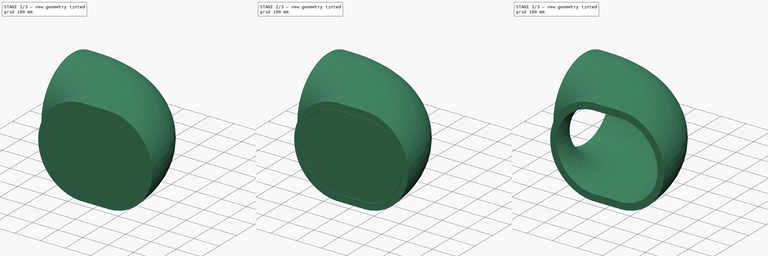
[diagram: build sequence overview — one tinted view per stage of 3, left to right]
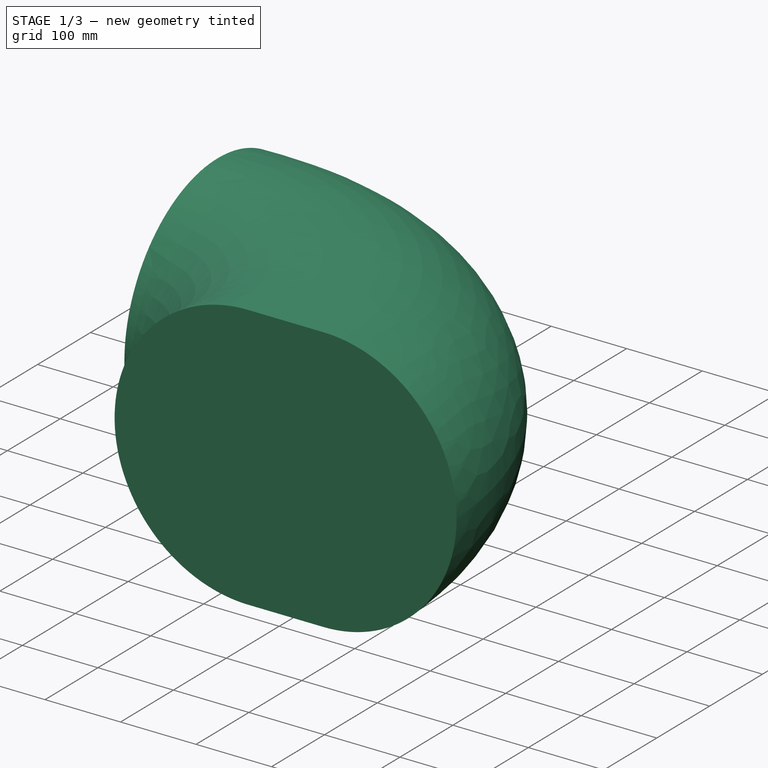
[diagram: stage 1 of 3 — iso view after this stage's code; geometry added in this stage tinted green]
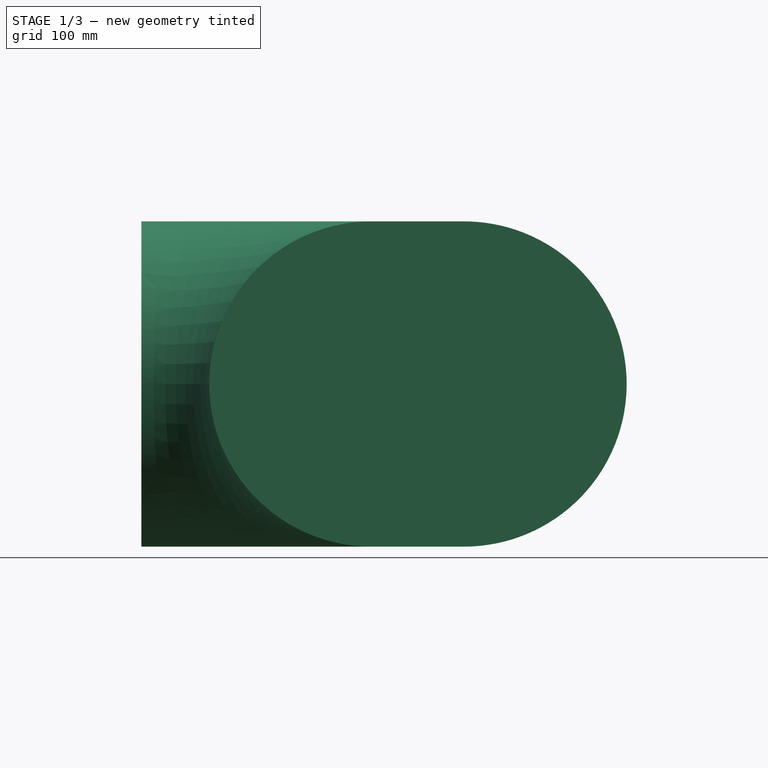
[diagram: stage 1 of 3 — front view after this stage's code; geometry added in this stage tinted green]
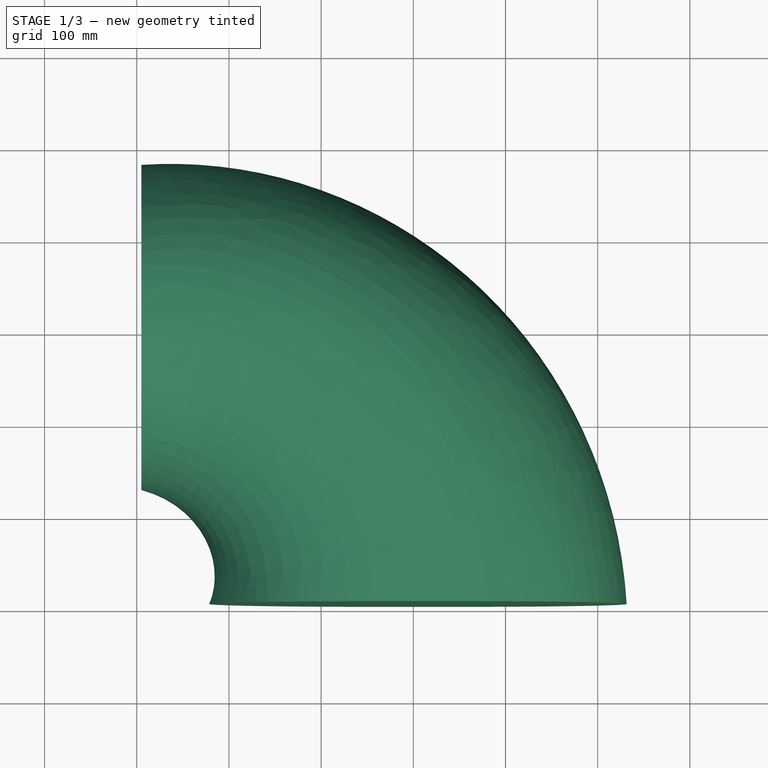
[diagram: stage 1 of 3 — top view after this stage's code; geometry added in this stage tinted green]
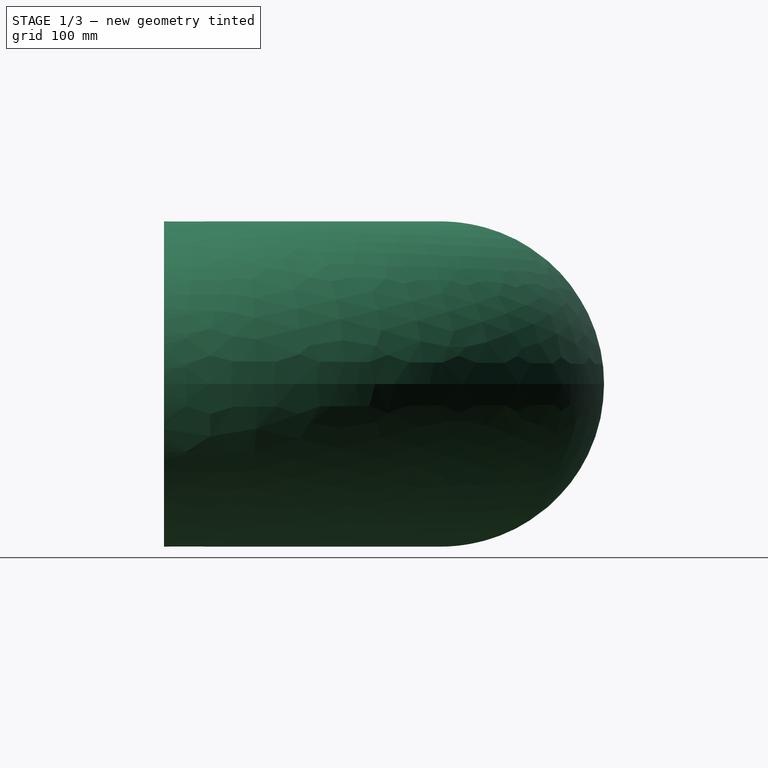
[diagram: stage 1 of 3 — right view after this stage's code; geometry added in this stage tinted green]
FCSTD DOCUMENT  (FreeCAD 1.0R38641 +468 (Git))
Label: Duct_curved_circular_oval_complete_R04
License: All rights reserved
LicenseURL: http://en.wikipedia.org/wiki/All_rights_reserved
objects: Sketcher::SketchObject×8, App::DocumentObjectGroup×5, TechDraw::DrawViewPart×4, Part::Sweep×3, App::MaterialObjectPython×2, Part::Cut×2, Part::Extrusion×2, TechDraw::DrawSVGTemplate×1, Part::Part2DObjectPython×1, Spreadsheet::Sheet×1, TechDraw::DrawViewSpreadsheet×1, App::TextDocument×1, App::DocumentObjectGroupPython×1, TechDraw::DrawViewSection×1, TechDraw::DrawPage×1, App::VarSet×1
note: 24 computed .brp shape members not serialized (recipe doc carries the construction recipe); baked Part::Feature solids carry a one-line shape summary decoded from their .brp

FEATURE [Sketcher::SketchObject] Sketch044  label="Opening_01_external_oval_insulation"
  ArcFitTolerance = 0
  AttachmentSupport = -> [Arc001]
  FullyConstrained = true
  MakeInternals = false
  MapMode = 7
  Placement = pos=(305,5,0) rot=(1,0,0;1.5708rad)
  expr: .AttachmentOffset.Base.z = 0
  expr: .Constraints.Diameter = VarSet.Duct_Opening1_diameter + 2 * VarSet.Duct_Sheet_thickness + 2 * VarSet.Insulation_Thickness
  expr: .Constraints.Distance_between_arcs = VarSet.Duct_Opening1_distance_between_arcs
  expr: AttachmentSupport = VarSet.Duct_Axis
  expr: MapPathParameter = VarSet.Duct_Flip_axis
  sketch-geometry (4):
    g0: ArcOfCircle CenterX=-50 CenterY=0 CenterZ=0 NormalX=0 NormalY=0 NormalZ=1 AngleXU=0 Radius=176.4 StartAngle=1.5708 EndAngle=4.71239
    g1: ArcOfCircle CenterX=50 CenterY=0 CenterZ=0 NormalX=0 NormalY=0 NormalZ=1 AngleXU=0 Radius=176.4 StartAngle=4.71239 EndAngle=7.85398
    g2: LineSegment StartX=-50 StartY=-176.4 StartZ=0 EndX=50 EndY=-176.4 EndZ=0
    g3: LineSegment StartX=50 StartY=176.4 StartZ=0 EndX=-50 EndY=176.4 EndZ=0
  constraints (9):
    c: Tangent(g0,g2) = -1.5708
    c: Tangent(g2,g1) = -1.5708
    c: Tangent(g1,g3) = -1.5708
    c: Tangent(g3,g0) = -1.5708
    c: Equal(g0,g1)
    c: Diameter(g1) = 352.8  'Diameter'
    c: DistanceX(g0,g1) = 100  'Distance_between_arcs'
    c: Symmetric(g0,g1,g-2)
    c: PointOnObject(g0,g-1)
FEATURE [Sketcher::SketchObject] Sketch045  label="Opening_02_circular_flange"
  ArcFitTolerance = 0
  AttachmentSupport = -> [Arc001]
  FullyConstrained = true
  MakeInternals = false
  MapMode = 7
  Placement = pos=(5,305,0) rot=(0.57735,0.57735,0.57735;2.0944rad)
  expr: .Constraints.Diameter_external = VarSet.Duct_Opening2_diameter + 2 * VarSet.Flange_Height
  expr: .Constraints.Diameter_internal = VarSet.Duct_Opening2_diameter
  expr: .Constraints.Horizontal_position = VarSet.Duct_Opening2_horizontal_position
  expr: .Constraints.Vertical_position = VarSet.Duct_Opening2_vertical_position
  expr: AttachmentSupport = VarSet.Duct_Axis
  expr: MapPathParameter = 1 - VarSet.Duct_Flip_axis
  sketch-geometry (2):
    g0: Circle CenterX=0 CenterY=0 CenterZ=0 NormalX=0 NormalY=0 NormalZ=1 AngleXU=0 Radius=150
    g1: Circle CenterX=0 CenterY=0 CenterZ=0 NormalX=0 NormalY=0 NormalZ=1 AngleXU=0 Radius=175.4
  constraints (5):
    c: Diameter(g0) = 300  'Diameter_internal'
    c: Diameter(g1) = 350.8  'Diameter_external'
    c: Coincident(g1,g0)
    c: DistanceY(g-1,g0) = 0  'Vertical_position'
    c: DistanceX(g-1,g0) = 0  'Horizontal_position'
FEATURE [Sketcher::SketchObject] Sketch046  label="Opening_01_oval_flange"
  ArcFitTolerance = 0
  AttachmentSupport = -> [Arc001]
  FullyConstrained = true
  MakeInternals = false
  MapMode = 7
  Placement = pos=(305,5,0) rot=(1,0,0;1.5708rad)
  expr: .AttachmentOffset.Base.z = 0
  expr: .Constraints.Diameter_external = VarSet.Duct_Opening1_diameter + 2 * VarSet.Flange_Height
  expr: .Constraints.Diameter_internal = VarSet.Duct_Opening1_diameter
  expr: .Constraints.Distance_between_arcs = VarSet.Duct_Opening1_distance_between_arcs
  expr: AttachmentSupport = VarSet.Duct_Axis
  expr: MapPathParameter = VarSet.Duct_Flip_axis
  sketch-geometry (8):
    g0: ArcOfCircle CenterX=-50 CenterY=0 CenterZ=0 NormalX=0 NormalY=0 NormalZ=1 AngleXU=0 Radius=150 StartAngle=1.5708 EndAngle=4.71239
    g1: ArcOfCircle CenterX=50 CenterY=0 CenterZ=0 NormalX=0 NormalY=0 NormalZ=1 AngleXU=0 Radius=150 StartAngle=4.71239 EndAngle=7.85398
    g2: LineSegment StartX=-50 StartY=-150 StartZ=0 EndX=50 EndY=-150 EndZ=0
    g3: LineSegment StartX=50 StartY=150 StartZ=0 EndX=-50 EndY=150 EndZ=0
    g4: ArcOfCircle CenterX=-50 CenterY=0 CenterZ=0 NormalX=0 NormalY=0 NormalZ=1 AngleXU=0 Radius=175.4 StartAngle=1.5708 EndAngle=4.71239
    g5: ArcOfCircle CenterX=50 CenterY=0 CenterZ=0 NormalX=0 NormalY=0 NormalZ=1 AngleXU=0 Radius=175.4 StartAngle=4.71239 EndAngle=7.85398
    g6: LineSegment StartX=-50 StartY=-175.4 StartZ=0 EndX=50 EndY=-175.4 EndZ=0
    g7: LineSegment StartX=50 StartY=175.4 StartZ=0 EndX=-50 EndY=175.4 EndZ=0
  constraints (17):
    c: Tangent(g0,g2) = -1.5708
    c: Tangent(g2,g1) = -1.5708
    c: Tangent(g1,g3) = -1.5708
    c: Tangent(g3,g0) = -1.5708
    c: Equal(g0,g1)
    c: Diameter(g1) = 300  'Diameter_internal'
    c: DistanceX(g0,g1) = 100  'Distance_between_arcs'
    c: Symmetric(g0,g1,g-2)
    c: PointOnObject(g0,g-1)
    c: Tangent(g4,g6) = -1.5708
    c: Tangent(g6,g5) = -1.5708
    c: Tangent(g5,g7) = -1.5708
    c: Tangent(g7,g4) = -1.5708
    c: Equal(g4,g5)
    c: Coincident(g4,g0)
    c: Coincident(g5,g1)
    c: Diameter(g5) = 350.8  'Diameter_external'
FEATURE [Spreadsheet::Sheet] Spreadsheet003  label="Output_curved_oval_circular_duct"
  cells = A1='Description:; A2==<<Oval curved duct for air conditioning of %s>> % round(VarSet.Duct_Axis.LastAngle - VarSet.Duct_Axis.FirstAngle) + <<, composed of %s>> % VarSet.Duct_Sheet_thickness + << thick of %s>> % VarSet.Materials_Sheet_metal.Label + << sheets (opening 1 of %s>> % (VarSet.Duct_Opening1_diameter + VarSet.Duct_Opening1_distance_between_arcs) + << x %s>> % VarSet.Duct_Opening1_diameter + << in width and height, and opening 2 of %s>> % VarSet.Duct_Opening2_diameter + << in diameter)>> + VarSet.Insulation_Insulation * (<< with an external insulation layer of %s>> % VarSet.Insulation_Thickness + << thick %s>> % VarSet.Materials_Insulation.Label + << blanket>>) + <<.>>; A5='Components; B5='D; C5='A; D5='W; E5='H; F5='T; G5='Area; H5='Material; A6='1. Duct (rectangular oval); G6==Cut.Base_Area; H6==VarSet.Materials_Sheet_metal.Label; A7='1.1. Duct length:; C7==VarSet.Duct_Axis.LastAngle - VarSet.Duct_Axis.FirstAngle; A8='1.2. Opening 1:; D8==VarSet.Duct_Opening1_diameter + VarSet.Duct_Opening1_distance_between_arcs; E8==VarSet.Duct_Opening1_diameter; A9='1.3. Opening 2:; B9==VarSet.Duct_Opening2_diameter; A10='1.4. Sheet thickness:; F10==VarSet.Duct_Sheet_thickness; A11='2. Flanges; G11==(VarSet.Flange_Flange_01 + VarSet.Flange_Flange_02 - VarSet.Flange_Flange_01 * VarSet.Flange_Flange_02) * str(round(Extrude.Base_Area * VarSet.Flange_Flange_01 + Extrude002.Base_Area * VarSet.Flange_Flange_02)); H11==(VarSet.Flange_Flange_01 + VarSet.Flange_Flange_02 - VarSet.Flange_Flange_01 * VarSet.Flange_Flange_02) * VarSet.Materials_Sheet_metal.Label; A12='2.1. Flanges height:; E12==(VarSet.Flange_Flange_01 + VarSet.Flange_Flange_02 - VarSet.Flange_Flange_01 * VarSet.Flange_Flange_02) * str(VarSet.Flange_Height); A13='2.2. Flanges thickness:; F13==(VarSet.Flange_Flange_01 + VarSet.Flange_Flange_02 - VarSet.Flange_Flange_01 * VarSet.Flange_Flange_02) * str(VarSet.Flange_Thickness); A14='3. Insulation; G14==VarSet.Insulation_Insulation * str(round(Cut008.Base_Area)) + <<--->> * (1 - VarSet.Insulation_Insulation); H14==VarSet.Materials_Insulation.Label * VarSet.Insulation_Insulation + <<--->> * (1 - VarSet.Insulation_Insulation); A15='3.1. Insulation thickness:; F15==str(VarSet.Insulation_Thickness) * VarSet.Insulation_Insulation + <<--->> * (1 - VarSet.Insulation_Insulation)
FEATURE [TechDraw::DrawViewSpreadsheet] Sheet
  CellEnd = H15
  CellStart = A5
  Font = Arial
  LineWidth = 0.35
  LockPosition = false
  Rotation = 0
  Scale = 0.73
  ScaleType = 2
  Source = -> Spreadsheet003
  Symbol = <blob: 20116 chars omitted>
  TextSize = 12
  X = 216.367
  Y = 89.4322
  expr: Scale = 0.73
FEATURE [App::DocumentObjectGroup] Group  label="Spreadsheet_output_"
  Group = -> [Spreadsheet003]
FEATURE [Sketcher::SketchObject] Sketch047  label="Opening_01_external_oval_001"
  ArcFitTolerance = 0
  AttachmentSupport = -> [Arc001]
  FullyConstrained = true
  MakeInternals = false
  MapMode = 7
  Placement = pos=(305,5,0) rot=(1,0,0;1.5708rad)
  expr: .AttachmentOffset.Base.z = 0
  expr: .Constraints.Diameter = VarSet.Duct_Opening1_diameter + 2 * VarSet.Duct_Sheet_thickness
  expr: .Constraints.Distance_between_arcs = VarSet.Duct_Opening1_distance_between_arcs
  expr: AttachmentSupport = VarSet.Duct_Axis
  expr: MapPathParameter = VarSet.Duct_Flip_axis
  sketch-geometry (4):
    g0: ArcOfCircle CenterX=-50 CenterY=0 CenterZ=0 NormalX=0 NormalY=0 NormalZ=1 AngleXU=0 Radius=151 StartAngle=1.5708 EndAngle=4.71239
    g1: ArcOfCircle CenterX=50 CenterY=0 CenterZ=0 NormalX=0 NormalY=0 NormalZ=1 AngleXU=0 Radius=151 StartAngle=4.71239 EndAngle=7.85398
    g2: LineSegment StartX=-50 StartY=-151 StartZ=0 EndX=50 EndY=-151 EndZ=0
    g3: LineSegment StartX=50 StartY=151 StartZ=0 EndX=-50 EndY=151 EndZ=0
  constraints (9):
    c: Tangent(g0,g2) = -1.5708
    c: Tangent(g2,g1) = -1.5708
    c: Tangent(g1,g3) = -1.5708
    c: Tangent(g3,g0) = -1.5708
    c: Equal(g0,g1)
    c: Diameter(g1) = 302  'Diameter'
    c: DistanceX(g0,g1) = 100  'Distance_between_arcs'
    c: Symmetric(g0,g1,g-2)
    c: PointOnObject(g0,g-1)
FEATURE [Sketcher::SketchObject] Sketch048  label="Opening_02_external_circular_"
  ArcFitTolerance = 0
  AttachmentSupport = -> [Arc001]
  FullyConstrained = true
  MakeInternals = false
  MapMode = 7
  Placement = pos=(5,305,0) rot=(0.57735,0.57735,0.57735;2.0944rad)
  expr: .Constraints.Diameter = VarSet.Duct_Opening2_diameter + 2 * VarSet.Duct_Sheet_thickness
  expr: .Constraints.Horizontal_position = VarSet.Duct_Opening2_horizontal_position
  expr: .Constraints.Vertical_position = VarSet.Duct_Opening2_vertical_position
  expr: AttachmentSupport = VarSet.Duct_Axis
  expr: MapPathParameter = 1 - VarSet.Duct_Flip_axis
  sketch-geometry (1):
    g0: Circle CenterX=0 CenterY=0 CenterZ=0 NormalX=0 NormalY=0 NormalZ=1 AngleXU=0 Radius=151
  constraints (3):
    c: Diameter(g0) = 302  'Diameter'
    c: DistanceY(g-1,g0) = 0  'Vertical_position'
    c: DistanceX(g-1,g0) = 0  'Horizontal_position'
FEATURE [Part::Sweep] Sweep005  label="Duct_curved_external_"
  Frenet = true
  Sections = -> [Sketch047,Sketch048]
  Solid = true
  Spine = -> Arc001
  Transition = 1
  expr: Spine = VarSet.Duct_Axis
FEATURE [Sketcher::SketchObject] Sketch049  label="Opening_02_external_circular_insulation"
  ArcFitTolerance = 0
  AttachmentSupport = -> [Arc001]
  FullyConstrained = true
  MakeInternals = false
  MapMode = 7
  Placement = pos=(5,305,0) rot=(0.57735,0.57735,0.57735;2.0944rad)
  expr: .Constraints.Diameter = VarSet.Duct_Opening2_diameter + 2 * VarSet.Duct_Sheet_thickness + 2 * VarSet.Insulation_Thickness
  expr: .Constraints.Horizontal_position = VarSet.Duct_Opening2_horizontal_position
  expr: .Constraints.Vertical_position = VarSet.Duct_Opening2_vertical_position
  expr: AttachmentSupport = VarSet.Duct_Axis
  expr: MapPathParameter = 1 - VarSet.Duct_Flip_axis
  sketch-geometry (1):
    g0: Circle CenterX=0 CenterY=0 CenterZ=0 NormalX=0 NormalY=0 NormalZ=1 AngleXU=0 Radius=176.4
  constraints (3):
    c: Diameter(g0) = 352.8  'Diameter'
    c: DistanceX(g-1,g0) = 0  'Horizontal_position'
    c: DistanceY(g-1,g0) = 0  'Vertical_position'
FEATURE [Part::Sweep] Sweep006  label="Duct_curved_external_insulation"
  Frenet = true
  Sections = -> [Sketch044,Sketch049]
  Solid = true
  Spine = -> Arc001
  Transition = 1
  expr: Spine = VarSet.Duct_Axis
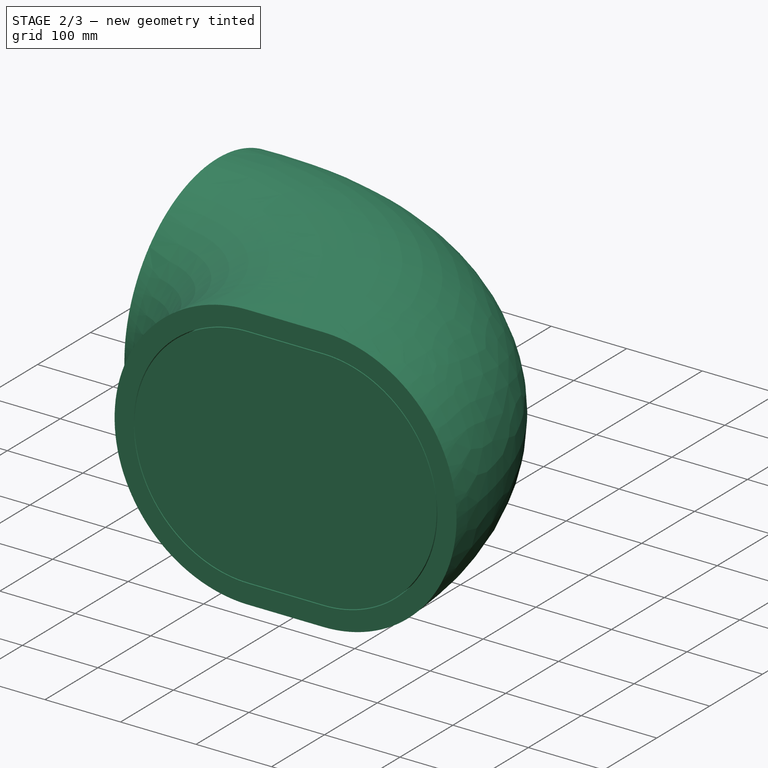
[diagram: stage 2 of 3 — iso view after this stage's code; geometry added in this stage tinted green]
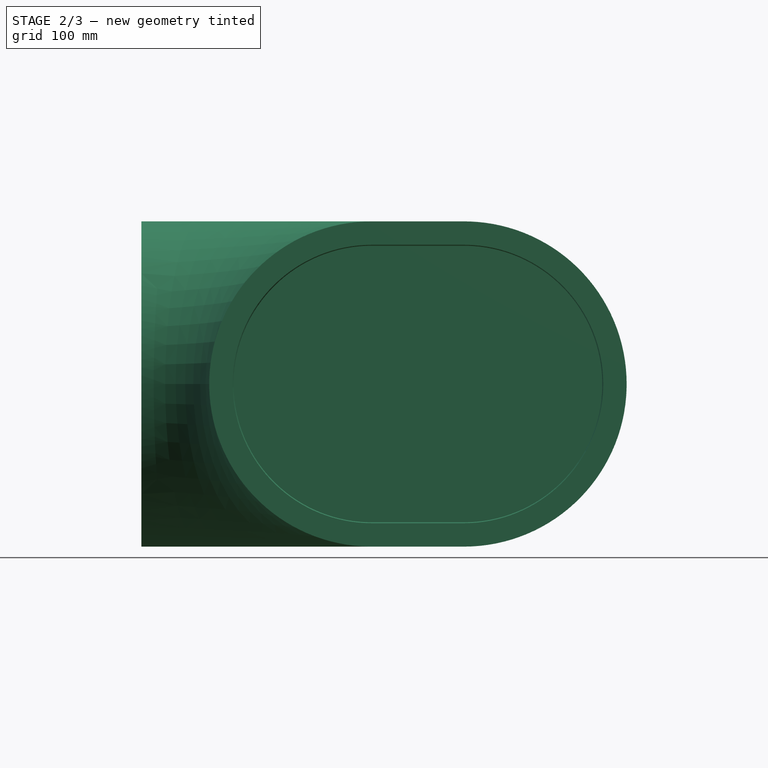
[diagram: stage 2 of 3 — front view after this stage's code; geometry added in this stage tinted green]
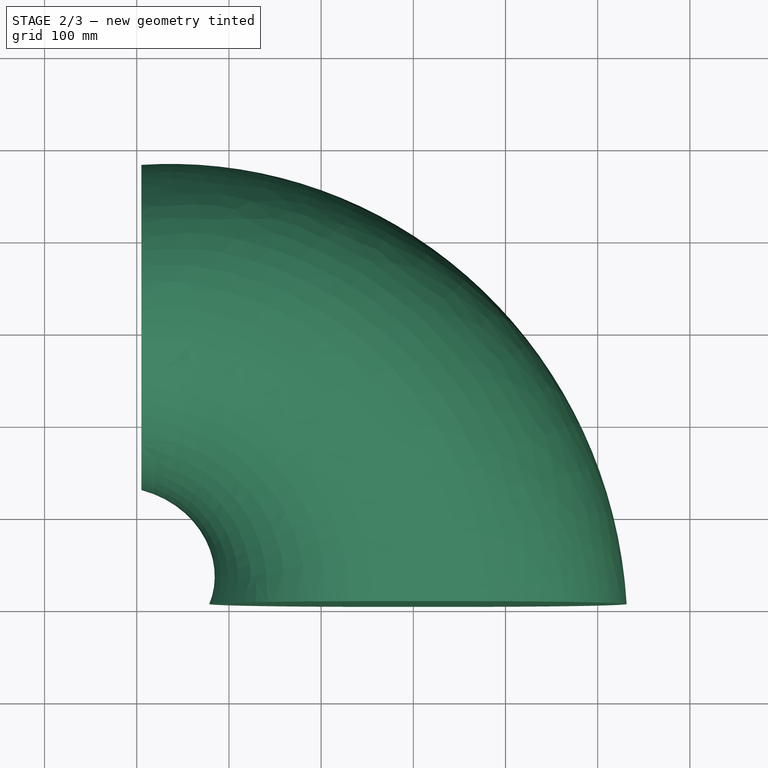
[diagram: stage 2 of 3 — top view after this stage's code; geometry added in this stage tinted green]
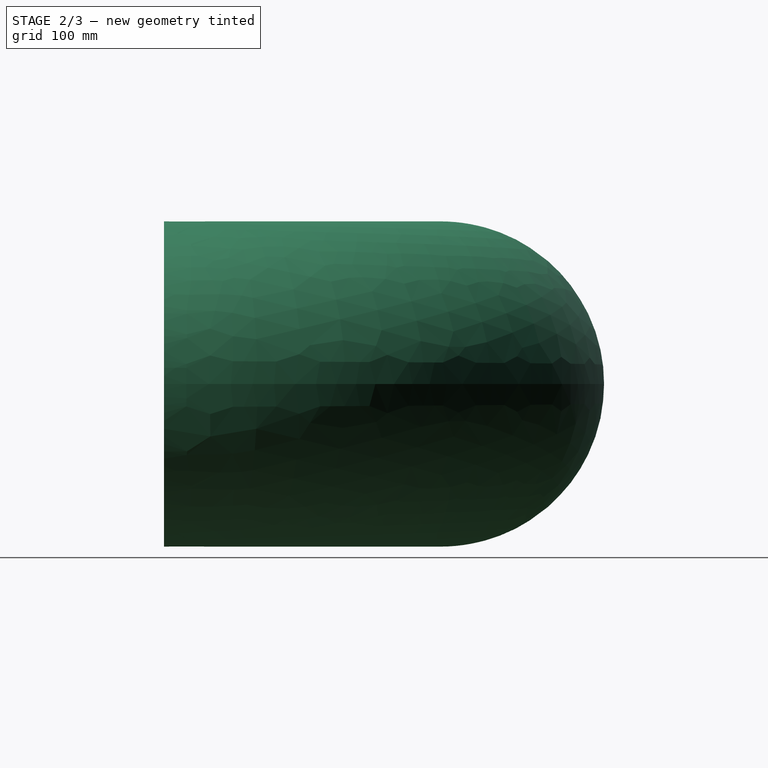
[diagram: stage 2 of 3 — right view after this stage's code; geometry added in this stage tinted green]
FEATURE [TechDraw::DrawSVGTemplate] Template
  EditableTexts = Designed_by_Name=Designed by Name; Drawing_number=Drawing number; FC-Date=Date; FC-SC=1/20; FC-SH=Sheet_01; FC-Title=Title; Subtitle=Oval circular curved duct; Weight=Weight
  Height = 210
  Orientation = 1
  Template = <path>
  Width = 297
FEATURE [Part::Part2DObjectPython] Arc001  label="Axis_"  # Draft 2D object (typed FeaturePython)
  Area = 0
  FirstAngle = 0
  LastAngle = 90
  MakeFace = false
  Placement = pos=(5,5,0) rot=(0,0,1;0rad)
  Radius = 300
FEATURE [Sketcher::SketchObject] Sketch039  label="Opening_02_internal_circular_"
  ArcFitTolerance = 0
  AttachmentSupport = -> [Arc001]
  FullyConstrained = true
  MakeInternals = false
  MapMode = 7
  Placement = pos=(5,305,0) rot=(0.57735,0.57735,0.57735;2.0944rad)
  expr: .Constraints.Diameter = VarSet.Duct_Opening2_diameter
  expr: .Constraints.Horizontal_position = VarSet.Duct_Opening2_horizontal_position
  expr: .Constraints.Vertical_position = VarSet.Duct_Opening2_vertical_position
  expr: AttachmentSupport = VarSet.Duct_Axis
  expr: MapPathParameter = 1 - VarSet.Duct_Flip_axis
  sketch-geometry (1):
    g0: Circle CenterX=0 CenterY=0 CenterZ=0 NormalX=0 NormalY=0 NormalZ=1 AngleXU=0 Radius=150
  constraints (3):
    c: Diameter(g0) = 300  'Diameter'
    c: DistanceX(g-1,g0) = 0  'Horizontal_position'
    c: DistanceY(g-1,g0) = 0  'Vertical_position'
FEATURE [Sketcher::SketchObject] Sketch040  label="Opening_01_internal_oval_"
  ArcFitTolerance = 0
  AttachmentSupport = -> [Arc001]
  FullyConstrained = true
  MakeInternals = false
  MapMode = 7
  Placement = pos=(305,5,0) rot=(1,0,0;1.5708rad)
  expr: .AttachmentOffset.Base.z = 0
  expr: .Constraints.Diameter = VarSet.Duct_Opening1_diameter
  expr: .Constraints.Distance_between_arcs = VarSet.Duct_Opening1_distance_between_arcs
  expr: AttachmentSupport = VarSet.Duct_Axis
  expr: MapPathParameter = VarSet.Duct_Flip_axis
  sketch-geometry (4):
    g0: ArcOfCircle CenterX=-50 CenterY=0 CenterZ=0 NormalX=0 NormalY=0 NormalZ=1 AngleXU=0 Radius=150 StartAngle=1.5708 EndAngle=4.71239
    g1: ArcOfCircle CenterX=50 CenterY=0 CenterZ=0 NormalX=0 NormalY=0 NormalZ=1 AngleXU=0 Radius=150 StartAngle=4.71239 EndAngle=7.85398
    g2: LineSegment StartX=-50 StartY=-150 StartZ=0 EndX=50 EndY=-150 EndZ=0
    g3: LineSegment StartX=50 StartY=150 StartZ=0 EndX=-50 EndY=150 EndZ=0
  constraints (9):
    c: Tangent(g0,g2) = -1.5708
    c: Tangent(g2,g1) = -1.5708
    c: Tangent(g1,g3) = -1.5708
    c: Tangent(g3,g0) = -1.5708
    c: Equal(g0,g1)
    c: Diameter(g1) = 300  'Diameter'
    c: DistanceX(g0,g1) = 100  'Distance_between_arcs'
    c: Symmetric(g0,g1,g-2)
    c: PointOnObject(g0,g-1)
FEATURE [Part::Sweep] Sweep001  label="Duct_curved_internal_"
  Frenet = true
  Sections = -> [Sketch040,Sketch039]
  Solid = true
  Spine = -> Arc001
  Transition = 1
  expr: Spine = VarSet.Duct_Axis
  expr: Visibility = VarSet.Duct_Show_volume_only
FEATURE [Part::Extrusion] Extrude002  label="Flange_02"
  Base = -> Sketch045
  Base_Area = 25965.8
  Dir = (1,-3.36025e-11,0)
  DirMode = 2
  FaceMakerClass = Part::FaceMakerBullseye
  FaceMakerMode = 3
  LengthFwd = 1
  LengthRev = 0
  Material = -> Material049
  Solid = true
  Symmetric = false
  expr: Base_Area = .Shape.Face3.Area
  expr: LengthFwd = VarSet.Flange_Thickness
  expr: Material = VarSet.Materials_Sheet_metal
  expr: Reversed = VarSet.Duct_Flip_axis
  expr: Visibility = VarSet.Flange_Flange_02 * (1 - VarSet.Duct_Show_volume_only)
FEATURE [App::MaterialObjectPython] Material050  label="glass wool with aluminium foill generic"  # material (typed FeaturePython)
  Material = AuthorAndLicense=Uwe Stöhr; CardName=Iron-Generic; Color=(0.8, 0.8, 0.8, 1.0); Density=7874 kg/m^3; DiffuseColor=(0.7372549176216125, 0.7372549176216125, 0.7372549176216125); ElectricalConductivity=10.3 MS/m; Father=Metal; KindOfMaterial=Iron; Name=glass wool with aluminium foill generic; PoissonRatio=0.29; RelativePermeability=5000.0; SectionColor=(0.8, 0.8, 0.8, 1.0); ShearModulus=82.0 GPa; SpecificHeat=460.5 J/kg/K; ThermalConductivity=80.4 W/m/K; ThermalExpansionCoefficient=11.8 µm/m/K; Transparency=0; UltimateTensileStrength=497 MPa; ViewColor=(0.8, 0.8, 0.8, 1.0); YieldStrength=428 MPa; YoungsModulus=211 GPa
  Transparency = 0
FEATURE [App::DocumentObjectGroupPython] MaterialContainer  label="Materials"  # scripted group (container) (typed FeaturePython)
  Group = -> [Material049,Material050]
FEATURE [Part::Cut] Cut008  label="Insulation_"
  Base = -> Sweep006
  Base_Area = 570529
  Material = -> Material050
  Tool = -> Sweep005
  expr: Base_Area = .Shape.Face1.Area + .Shape.Face2.Area + .Shape.Face4.Area + .Shape.Face6.Area + .Shape.Face7.Area
  expr: Material = VarSet.Materials_Insulation
  expr: Visibility = VarSet.Insulation_Insulation * (1 - VarSet.Duct_Show_volume_only)
FEATURE [TechDraw::DrawViewPart] View  label="Isometric"
  CoarseView = false
  Direction = (0.57735,-0.57735,0.57735)
  Focus = 100
  HardHidden = false
  IsoCount = 0
  IsoHidden = false
  IsoVisible = false
  LockPosition = false
  Perspective = false
  Rotation = 0
  Scale = 0.05
  ScaleType = 2
  ScrubCount = 0
  SeamHidden = false
  SeamVisible = true
  SmoothHidden = false
  SmoothVisible = true
  Source = -> [Cut008]
  X = 231.61
  XDirection = (0.707107,0.707107,0)
  Y = 165.947
FEATURE [TechDraw::DrawViewPart] View001  label="View 01"
  CoarseView = false
  Direction = (0,-1,0)
  Focus = 100
  HardHidden = false
  IsoCount = 0
  IsoHidden = false
  IsoVisible = false
  LockPosition = false
  Perspective = false
  Rotation = 0
  Scale = 0.05
  ScaleType = 2
  ScrubCount = 0
  SeamHidden = false
  SeamVisible = true
  SmoothHidden = false
  SmoothVisible = true
  Source = -> [Cut008]
  X = 40.4019
  XDirection = (1,0,0)
  Y = 151.141
FEATURE [TechDraw::DrawViewPart] View002  label="View 03"
  CoarseView = false
  Direction = (-1,0,0)
  Focus = 100
  HardHidden = false
  IsoCount = 0
  IsoHidden = false
  IsoVisible = false
  LockPosition = false
  Perspective = false
  Rotation = 0
  Scale = 0.05
  ScaleType = 2
  ScrubCount = 0
  SeamHidden = false
  SeamVisible = true
  SmoothHidden = false
  SmoothVisible = true
  Source = -> [Cut008]
  X = 103.771
  XDirection = (0,-1,0)
  Y = 79.0505
FEATURE [TechDraw::DrawViewPart] View003  label="View 02"
  CoarseView = false
  Direction = (0,0,1)
  Focus = 100
  HardHidden = false
  IsoCount = 0
  IsoHidden = false
  IsoVisible = false
  LockPosition = false
  Perspective = false
  Rotation = 0
  Scale = 0.05
  ScaleType = 2
  ScrubCount = 0
  SeamHidden = false
  SeamVisible = true
  SmoothHidden = false
  SmoothVisible = true
  Source = -> [Cut008]
  X = 40.4574
  XDirection = (1,0,0)
  Y = 80.4629
FEATURE [TechDraw::DrawViewSection] SectionView  label="Section 01"
  BaseView = -> View002
  CoarseView = false
  CutSurfaceDisplay = 2
  Direction = (0,-1e-16,1)
  FileGeomPattern = <path>
  FileHatchPattern = <path>
  Focus = 100
  FuseBeforeCut = false
  HardHidden = false
  HatchOffset = (0,0,0)
  HatchRotation = 0
  HatchScale = 1
  IsoCount = 0
  IsoHidden = false
  IsoVisible = false
  LockPosition = false
  NameGeomPattern = Diamante
  Perspective = false
  Rotation = 0
  Scale = 0.05
  ScaleType = 2
  ScrubCount = 0
  SeamHidden = false
  SeamVisible = true
  SectionDirection = 4
  SectionLineStretch = 1
  SectionNormal = (0,-1e-16,1)
  SectionOrigin = (400.72,425.4,0)
  SmoothHidden = false
  SmoothVisible = true
  Source = -> [Cut008]
  TrimAfterCut = false
  UsePreviousCut = false
  X = 104.571
  XDirection = (0,-1,-1e-16)
  Y = 154.866
FEATURE [TechDraw::DrawPage] Page  label="Sheet_01"
  KeepUpdated = true
  NextBalloonIndex = 1
  ProjectionType = 0
  Template = -> Template
  Views = -> [View,View001,View002,View003,SectionView,Sheet]
FEATURE [App::VarSet] VarSet  label="Duct_curved_circular_oval_properties"
  Duct_Axis = -> Arc001
  Duct_Duct = true
  Duct_Flip_axis = false
  Duct_Opening1_diameter = 300
  Duct_Opening1_distance_between_arcs = 100
  Duct_Opening2_diameter = 300
  Duct_Opening2_horizontal_position = 0
  Duct_Opening2_vertical_position = 0
  Duct_Sheet_thickness = 1
  Duct_Show_volume_only = false
  Flange_Flange_01 = true
  Flange_Flange_02 = true
  Flange_Height = 25.4
  Flange_Thickness = 1
  Insulation_Insulation = true
  Insulation_Thickness = 25.4
  Materials_Insulation = -> Material050
  Materials_Sheet_metal = -> Material049
  expr: Insulation_Thickness = 1 in
FEATURE [App::DocumentObjectGroup] Group005  label="Components"
  Group = -> [Cut,Extrude,Extrude002,Cut008]
FEATURE [App::DocumentObjectGroup] Group006  label="Materials001"
  Group = -> [MaterialContainer]
FEATURE [App::DocumentObjectGroup] Group007  label="Drawings"
  Group = -> [Page]
FEATURE [App::DocumentObjectGroup] Group008  label="Duct_curved_circular_oval_#_"
  Group = -> [VarSet,Group005,Group,Group006,Group007,Text_document]
note: 3 file-system paths scrubbed to <path> (originals preserved in the JSON sidecar)
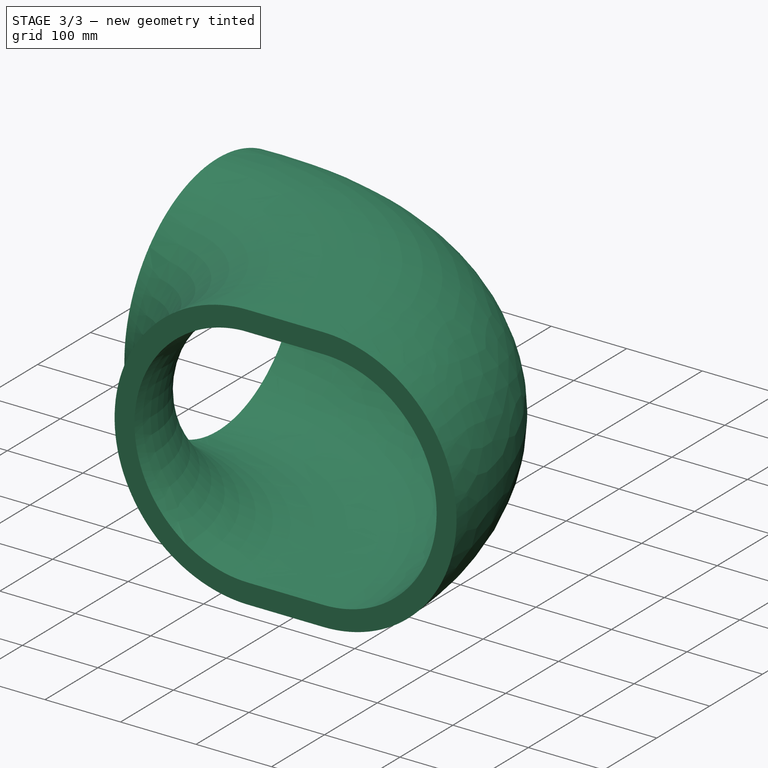
[diagram: stage 3 of 3 — iso view after this stage's code; geometry added in this stage tinted green]
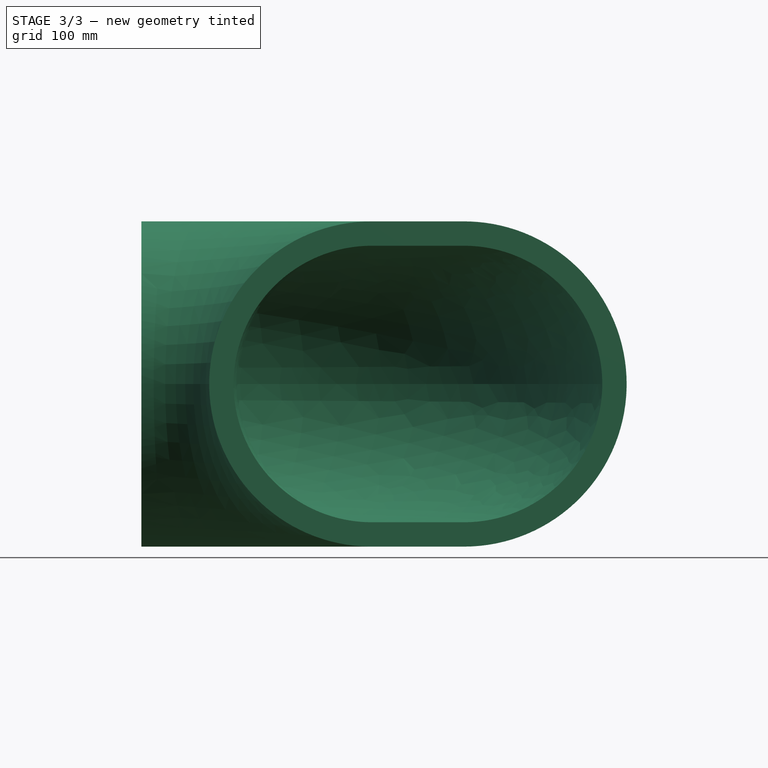
[diagram: stage 3 of 3 — front view after this stage's code; geometry added in this stage tinted green]
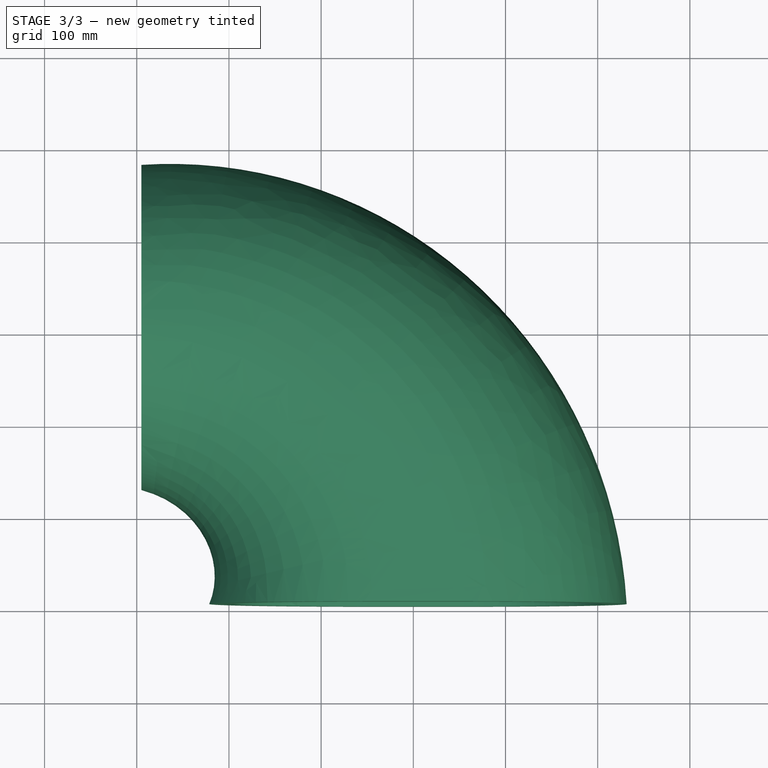
[diagram: stage 3 of 3 — top view after this stage's code; geometry added in this stage tinted green]
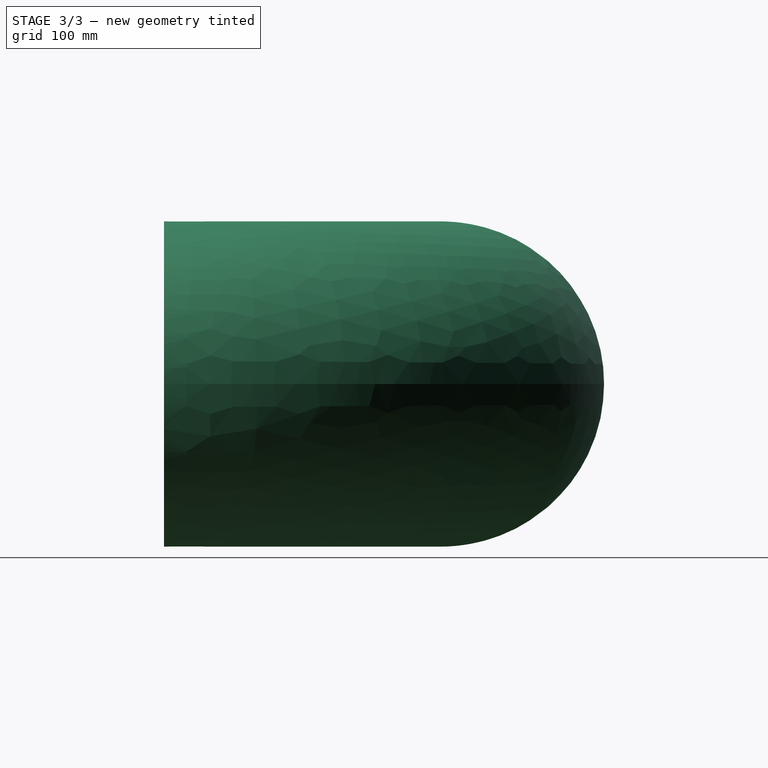
[diagram: stage 3 of 3 — right view after this stage's code; geometry added in this stage tinted green]
FEATURE [App::TextDocument] Text_document  label="Instructions"
  Text = 1. Construction of the axes in the final position of the project:\n\n. Use only individual lines and curves to construct the axes in the final position of the duct network project, one for each duct section;\n\n. Do not use polylines or sketches. If there is already a network with these elements, transform them into individual lines and curves;\n\n. Before applying the ducts in the final network, review the spreadsheets and drawings of the duct files according to the project needs. This will reduce the final review work (see item 3). Be careful not to erase the automation (using expressions) contained in the spreadsheet fields.\n\n2. Application of the component in the final project (see the corresponding tutorial videos):\n\n. In the duct properties window, replace the existing axis with the corresponding section of the final project (Axis of Ducts field);\n\n. Adjust the dimensions of openings 1 and 2 according to the design. If these pre-set dimensions are large in relation to the duct axis radius, this may distort the shape of the duct, but this should be corrected after adjustment to the design;\n\n. If necessary, invert the duct axis so that openings 1 or 2 swap positions (Flip_axis field of Ducts);\n\n3. Review of individual drawings\n\n. After inserting the ducts into the designed network, review the individual drawings contained in the duct files, according to your needs (scale, dimensions, notes, views, etc.).\n\n4. General drawing of the network\n\n. If you prefer, you can create a spreadsheet of the ducts used linked to the individual ones, presenting a summary of the descriptions, areas, materials, dimensions, as well as their sums.\n\n5. Help and comments\n\n. If you encounter any problems and require help or want to make a comment, use the FreeCAD forum for this purpose.
FEATURE [App::MaterialObjectPython] Material049  label="galvanized steel generic"  # material (typed FeaturePython)
  Material = AuthorAndLicense=Uwe Stöhr; CardName=Iron-Generic; Color=(0.8, 0.8, 0.8, 1.0); Density=7874 kg/m^3; DiffuseColor=(0.3607843220233917, 0.3607843220233917, 0.40784314274787903); ElectricalConductivity=10.3 MS/m; Father=Metal; KindOfMaterial=Iron; Name=galvanized steel generic; PoissonRatio=0.29; RelativePermeability=5000.0; SectionColor=(0.8, 0.8, 0.8, 1.0); ShearModulus=82.0 GPa; SpecificHeat=460.5 J/kg/K; ThermalConductivity=80.4 W/m/K; ThermalExpansionCoefficient=11.8 µm/m/K; Transparency=0; UltimateTensileStrength=497 MPa; ViewColor=(0.8, 0.8, 0.8, 1.0); YieldStrength=428 MPa; YoungsModulus=211 GPa
  Transparency = 0
FEATURE [Part::Cut] Cut  label="Duct_reduction_curved_"
  Base = -> Sweep005
  Base_Area = 494559
  Material = -> Material049
  Tool = -> Sweep001
  expr: Base_Area = .Shape.Face1.Area + .Shape.Face2.Area + .Shape.Face4.Area + .Shape.Face6.Area + .Shape.Face7.Area
  expr: Material = VarSet.Materials_Sheet_metal
  expr: Visibility = VarSet.Duct_Duct * (1 - VarSet.Duct_Show_volume_only)
FEATURE [Part::Extrusion] Extrude  label="Flange_01_"
  Base = -> Sketch046
  Base_Area = 31045.8
  Dir = (0,-1,2e-16)
  DirMode = 2
  FaceMakerClass = Part::FaceMakerBullseye
  FaceMakerMode = 3
  LengthFwd = 1
  LengthRev = 0
  Material = -> Material049
  Reversed = true
  Solid = true
  Symmetric = false
  expr: Base_Area = .Shape.Face9.Area
  expr: LengthFwd = VarSet.Flange_Thickness
  expr: Material = VarSet.Materials_Sheet_metal
  expr: Reversed = 1 - VarSet.Duct_Flip_axis
  expr: Visibility = VarSet.Flange_Flange_01 * (1 - VarSet.Duct_Show_volume_only)
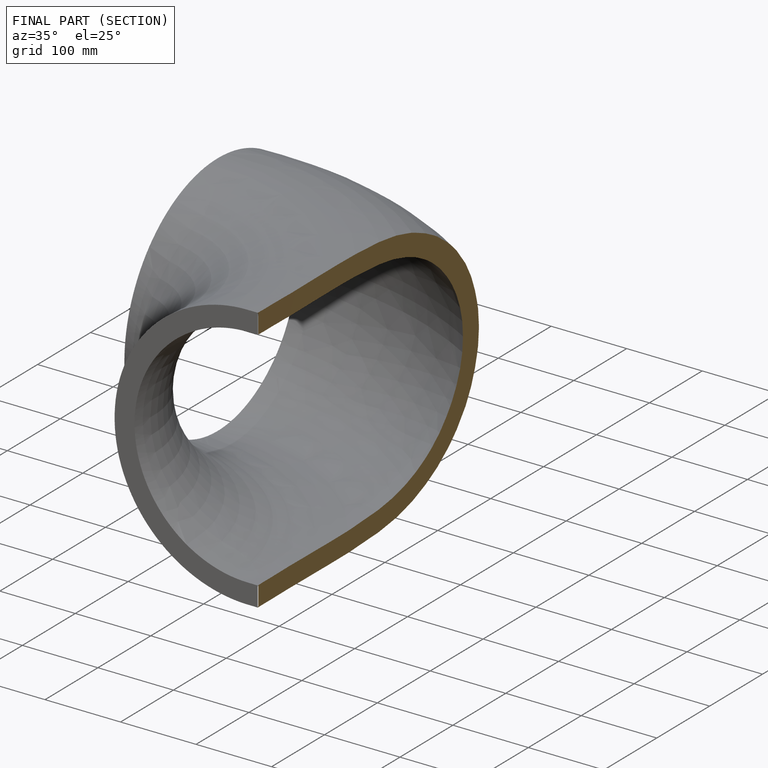
[diagram: finished part — half-section view (interior)]
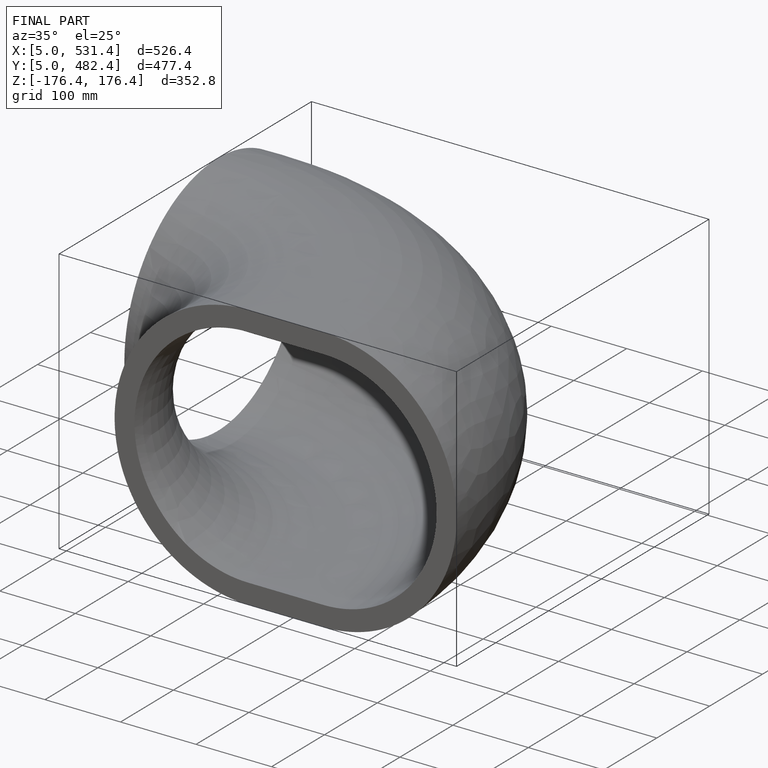
[diagram: finished part — iso view with bounding-box wireframe]
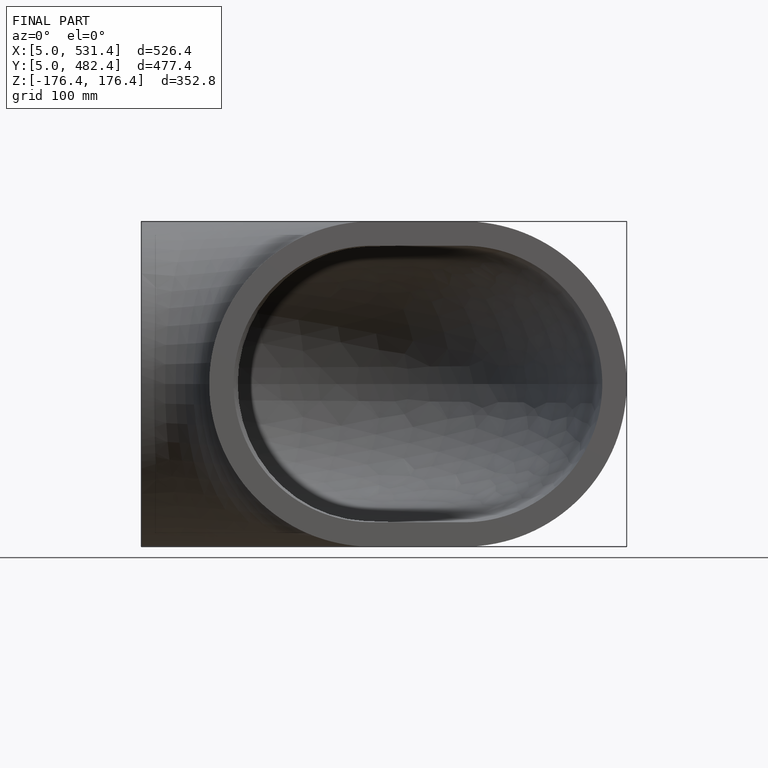
[diagram: finished part — front view with bounding-box wireframe]
